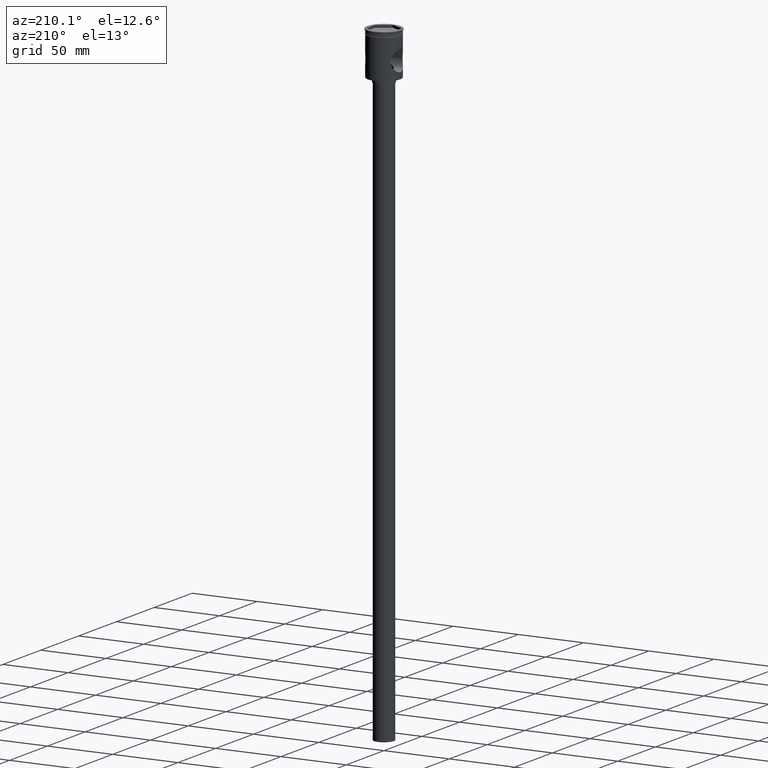
[diagram: clean part render]
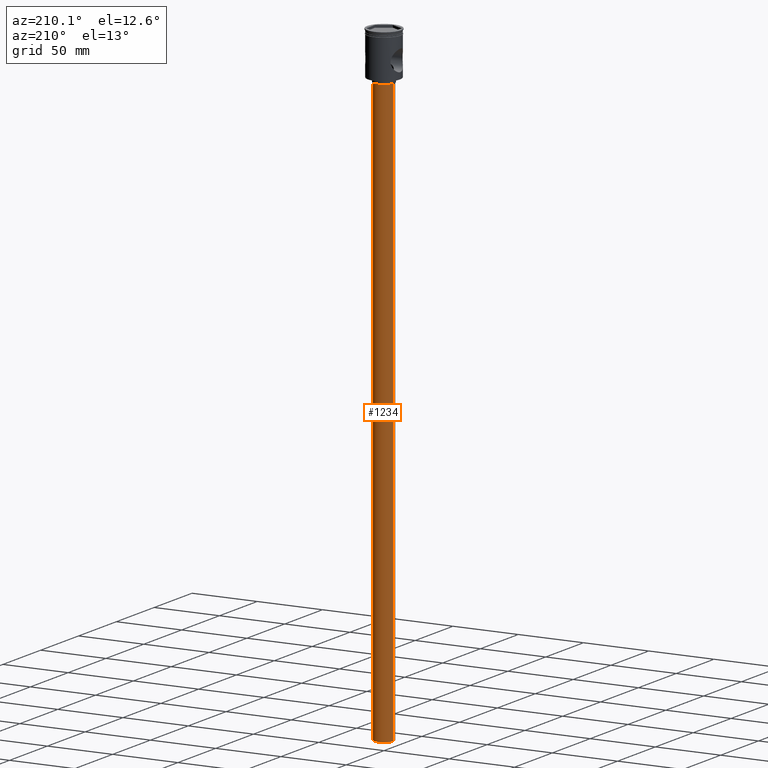
[diagram: same view with one face highlighted and labeled with its STEP entity id]
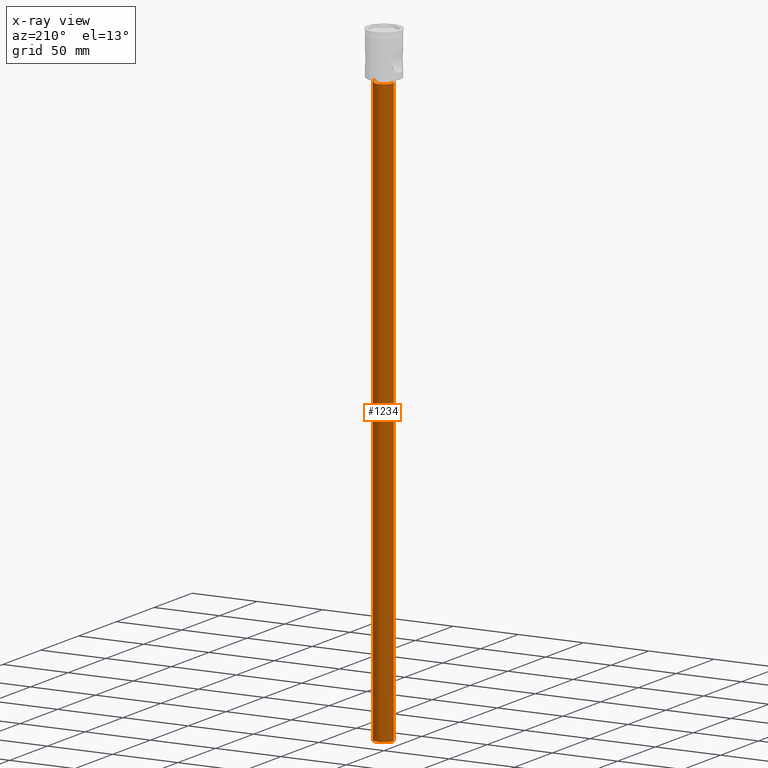
[diagram: x-ray of the same camera — body ghosted, the highlighted face saturated]
A machine part, auxiliary view. The second image highlights one B-rep face of the part: STEP entity #1234.
The next image is the same camera in x-ray: the body ghosted, the highlighted face saturated — about 0% of this face is hidden behind the body in this view.
In plain terms, the highlighted cylindrical surface (edge-blend (fillet) strip) has radius 7.5 mm, axis along (-0, -0, 1).
Its self-contained STEP definition (entity closure, byte-faithful):
#95 = VERTEX_POINT ( 'NONE', #684 ) ;
#122 = DIRECTION ( 'NONE',  ( 0.000000000000000000, 0.000000000000000000, -1.000000000000000000 ) ) ;
#128 = AXIS2_PLACEMENT_3D ( 'NONE', #913, #198, #675 ) ;
#130 = CARTESIAN_POINT ( 'NONE',  ( 7.500000000000000000, 0.000000000000000000, -36.50000000000000711 ) ) ;
#181 = ORIENTED_EDGE ( 'NONE', *, *, #695, .F. ) ;
#193 = EDGE_CURVE ( 'NONE', #95, #578, #1342, .T. ) ;
#198 = DIRECTION ( 'NONE',  ( 0.000000000000000000, 0.000000000000000000, -1.000000000000000000 ) ) ;
#304 = LINE ( 'NONE', #311, #1203 ) ;
#311 = CARTESIAN_POINT ( 'NONE',  ( -7.500000000000000000, 9.184850993605147944E-16, -483.5000000000000568 ) ) ;
#361 = ORIENTED_EDGE ( 'NONE', *, *, #1319, .F. ) ;
#513 = DIRECTION ( 'NONE',  ( -0.000000000000000000, -0.000000000000000000, 1.000000000000000000 ) ) ;
#578 = VERTEX_POINT ( 'NONE', #130 ) ;
#636 = ORIENTED_EDGE ( 'NONE', *, *, #995, .T. ) ;
#675 = DIRECTION ( 'NONE',  ( -1.000000000000000000, 0.000000000000000000, 0.000000000000000000 ) ) ;
#684 = CARTESIAN_POINT ( 'NONE',  ( -7.500000000000000000, 9.184850993605147944E-16, -36.50000000000000711 ) ) ;
#695 = EDGE_CURVE ( 'NONE', #1306, #578, #743, .T. ) ;
#710 = DIRECTION ( 'NONE',  ( -1.000000000000000000, 0.000000000000000000, 0.000000000000000000 ) ) ;
#743 = LINE ( 'NONE', #1223, #1323 ) ;
#757 = DIRECTION ( 'NONE',  ( 1.000000000000000000, 0.000000000000000000, 0.000000000000000000 ) ) ;
#891 = ORIENTED_EDGE ( 'NONE', *, *, #193, .T. ) ;
#913 = CARTESIAN_POINT ( 'NONE',  ( 0.000000000000000000, 0.000000000000000000, -483.5000000000000568 ) ) ;
#975 = AXIS2_PLACEMENT_3D ( 'NONE', #1197, #122, #710 ) ;
#995 = EDGE_CURVE ( 'NONE', #1048, #95, #304, .T. ) ;
#1015 = CARTESIAN_POINT ( 'NONE',  ( 0.000000000000000000, 0.000000000000000000, -483.5000000000000568 ) ) ;
#1021 = CYLINDRICAL_SURFACE ( 'NONE', #1078, 7.500000000000000000 ) ;
#1048 = VERTEX_POINT ( 'NONE', #1531 ) ;
#1078 = AXIS2_PLACEMENT_3D ( 'NONE', #1015, #1123, #757 ) ;
#1123 = DIRECTION ( 'NONE',  ( -0.000000000000000000, -0.000000000000000000, 1.000000000000000000 ) ) ;
#1128 = CIRCLE ( 'NONE', #128, 7.500000000000000000 ) ;
#1197 = CARTESIAN_POINT ( 'NONE',  ( 0.000000000000000000, 0.000000000000000000, -36.50000000000000711 ) ) ;
#1203 = VECTOR ( 'NONE', #513, 1000.000000000000000 ) ;
#1223 = CARTESIAN_POINT ( 'NONE',  ( 7.500000000000000000, 0.000000000000000000, -483.5000000000000568 ) ) ;
#1230 = DIRECTION ( 'NONE',  ( -0.000000000000000000, -0.000000000000000000, 1.000000000000000000 ) ) ;
#1233 = FACE_OUTER_BOUND ( 'NONE', #1250, .T. ) ;
#1234 = ADVANCED_FACE ( 'NONE', ( #1233 ), #1021, .T. ) ;
#1250 = EDGE_LOOP ( 'NONE', ( #361, #636, #891, #181 ) ) ;
#1306 = VERTEX_POINT ( 'NONE', #1363 ) ;
#1319 = EDGE_CURVE ( 'NONE', #1048, #1306, #1128, .T. ) ;
#1323 = VECTOR ( 'NONE', #1230, 1000.000000000000000 ) ;
#1342 = CIRCLE ( 'NONE', #975, 7.500000000000000000 ) ;
#1363 = CARTESIAN_POINT ( 'NONE',  ( 7.500000000000000000, 0.000000000000000000, -483.5000000000000568 ) ) ;
#1531 = CARTESIAN_POINT ( 'NONE',  ( -7.500000000000000000, 9.184850993605147944E-16, -483.5000000000000568 ) ) ;